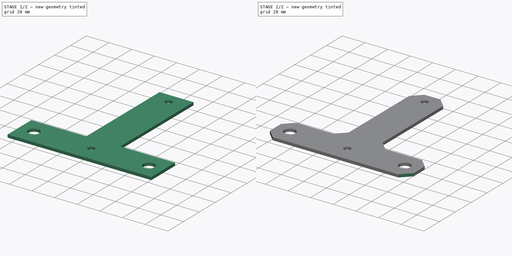
[diagram: build sequence overview — one tinted view per stage of 2, left to right]
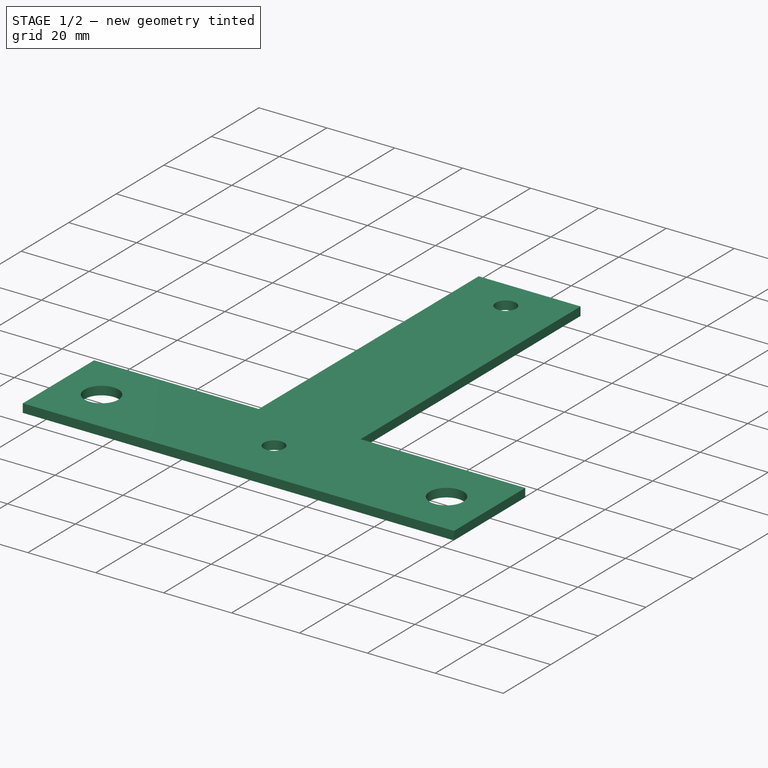
[diagram: stage 1 of 2 — iso view after this stage's code; geometry added in this stage tinted green]
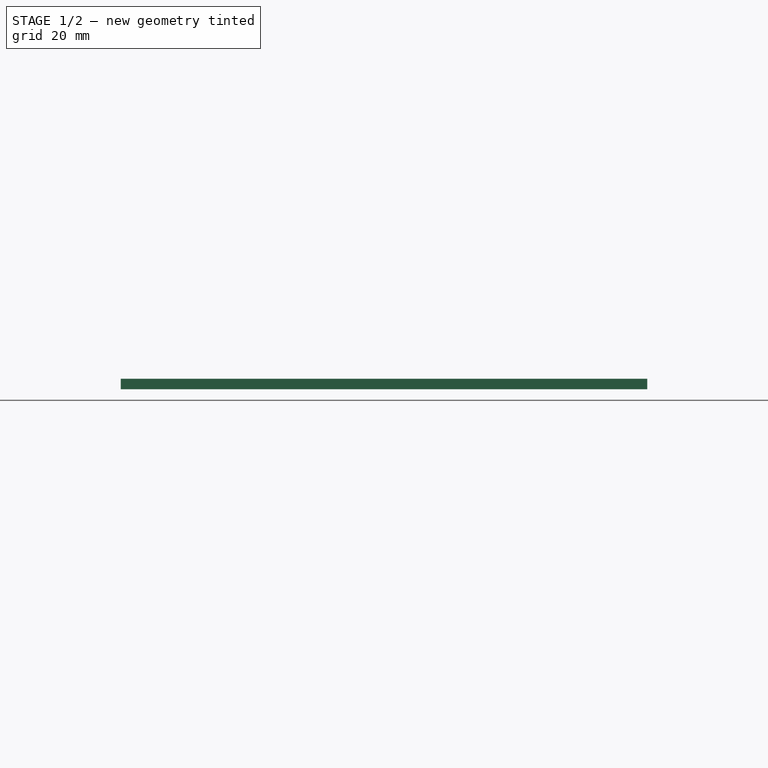
[diagram: stage 1 of 2 — front view after this stage's code; geometry added in this stage tinted green]
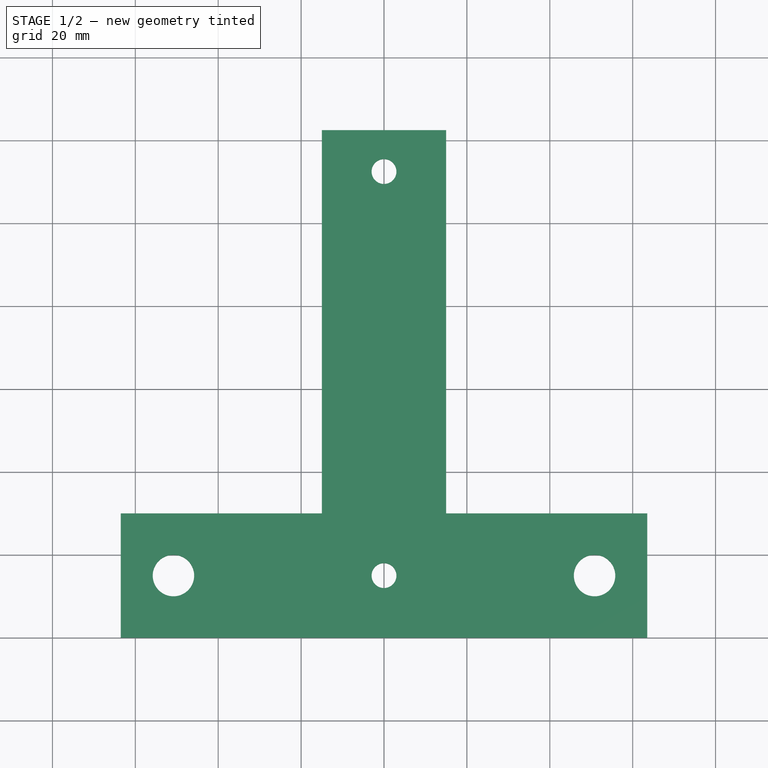
[diagram: stage 1 of 2 — top view after this stage's code; geometry added in this stage tinted green]
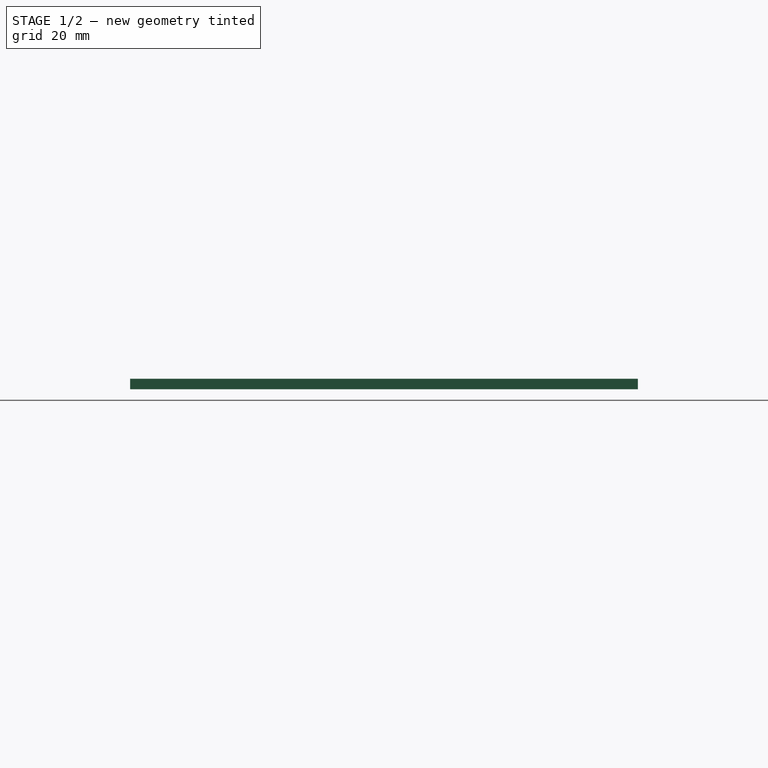
[diagram: stage 1 of 2 — right view after this stage's code; geometry added in this stage tinted green]
FCSTD DOCUMENT  (FreeCAD 1.0R39109 (Git))
Label: controller-bracket-sheetmetal
License: All rights reserved
LicenseURL: https://en.wikipedia.org/wiki/All_rights_reserved
objects: Sketcher::SketchObject×2, PartDesign::Pad×1, PartDesign::Chamfer×1, PartDesign::Body×1, Part::Feature×1
note: 12 computed .brp shape members not serialized (recipe doc carries the construction recipe); baked Part::Feature solids carry a one-line shape summary decoded from their .brp

FEATURE [Sketcher::SketchObject] Sketch
  ArcFitTolerance = 1e-06
  AttachmentSupport = -> [XY_Plane]
  FullyConstrained = true
  MakeInternals = false
  MapMode = 5
  expr: Constraints[10] = 30
  expr: Constraints[22] = 6
  expr: Constraints[23] = 97.5
  expr: Constraints[41] = 4 in
  expr: Constraints[9] = 5 in
  sketch-geometry (18):
    g0: LineSegment StartX=-63.5 StartY=30 StartZ=0 EndX=-63.5 EndY=0 EndZ=0
    g1: LineSegment StartX=-63.5 StartY=0 StartZ=0 EndX=63.5 EndY=0 EndZ=0
    g2: LineSegment StartX=63.5 StartY=0 StartZ=0 EndX=63.5 EndY=30 EndZ=0
    g3: LineSegment [constr] StartX=63.5 StartY=30 StartZ=0 EndX=-63.5 EndY=30 EndZ=0
    g4: LineSegment [constr] StartX=-15 StartY=0 StartZ=0 EndX=15 EndY=0 EndZ=0
    g5: LineSegment [constr] StartX=15 StartY=0 StartZ=0 EndX=15 EndY=122.5 EndZ=0
    g6: LineSegment [constr] StartX=15 StartY=122.5 StartZ=0 EndX=-15 EndY=122.5 EndZ=0
    g7: LineSegment [constr] StartX=-15 StartY=122.5 StartZ=0 EndX=-15 EndY=0 EndZ=0
    g8: Circle CenterX=0 CenterY=112.5 CenterZ=0 NormalX=0 NormalY=0 NormalZ=1 AngleXU=0 Radius=3
    g9: Circle CenterX=-3.2e-15 CenterY=15 CenterZ=0 NormalX=0 NormalY=0 NormalZ=1 AngleXU=0 Radius=3
    g10: LineSegment StartX=-15 StartY=30 StartZ=0 EndX=-15 EndY=122.5 EndZ=0
    g11: LineSegment StartX=-15 StartY=122.5 StartZ=0 EndX=15 EndY=122.5 EndZ=0
    g12: LineSegment StartX=15 StartY=122.5 StartZ=0 EndX=15 EndY=30 EndZ=0
    g13: LineSegment StartX=-63.5 StartY=30 StartZ=0 EndX=-15 EndY=30 EndZ=0
    g14: LineSegment StartX=15 StartY=30 StartZ=0 EndX=63.5 EndY=30 EndZ=0
    g15: Circle CenterX=-50.8 CenterY=15 CenterZ=0 NormalX=0 NormalY=0 NormalZ=1 AngleXU=0 Radius=5
    g16: Circle CenterX=50.8 CenterY=15 CenterZ=0 NormalX=0 NormalY=0 NormalZ=1 AngleXU=0 Radius=5
    g17: GeomPoint [constr] X=-3.2e-15 Y=15 Z=0
  constraints (45):
    c: Coincident(g0,g1)
    c: Coincident(g1,g2)
    c: Coincident(g2,g3)
    c: Coincident(g3,g0)
    c: Vertical(g0)
    c: Vertical(g2)
    c: Horizontal(g1)
    c: Horizontal(g3)
    c: Symmetric(g1,g0,g-1)
    c: DistanceX(g1,g1) = 127
    c: DistanceY(g0,g0) = 30
    c: Coincident(g4,g5)
    c: Coincident(g5,g6)
    c: Coincident(g6,g7)
    c: Coincident(g7,g4)
    c: Horizontal(g4)
    c: Horizontal(g6)
    c: Vertical(g5)
    c: Vertical(g7)
    c: Symmetric(g4,g4,g-1)
    c: Equal(g6,g0)
    c: Equal(g9,g8)
    c: Diameter(g8) = 6
    c: DistanceY(g9,g8) = 97.5
    c: PointOnObject(g10,g3)
    c: Coincident(g10,g6)
    c: Coincident(g11,g6)
    c: Coincident(g11,g5)
    c: Coincident(g12,g5)
    c: PointOnObject(g12,g3)
    c: Coincident(g13,g0)
    c: Coincident(g13,g10)
    c: Coincident(g14,g12)
    c: Coincident(g14,g2)
    c: PointOnObject(g12,g5)
    c: PointOnObject(g10,g7)
    c: Symmetric(g0,g1,g17)
    c: Symmetric(g16,g15,g17)
    c: Equal(g15,g16)
    c: Horizontal(g16,g15)
    c: Diameter(g15) = 10
    c: DistanceX(g15,g16) = 101.6
    c: PointOnObject(g8,g-2)
    c: DistanceY(g8,g5) = 10
    c: Coincident(g17,g9)
FEATURE [PartDesign::Pad] Pad
  Direction = (0,0,1)
  Length = 2.54
  Length2 = 10
  Profile = -> Sketch
  ReferenceAxis = -> Sketch [N_Axis]
  Refine = true
  Suppressed = false
  Type = 0
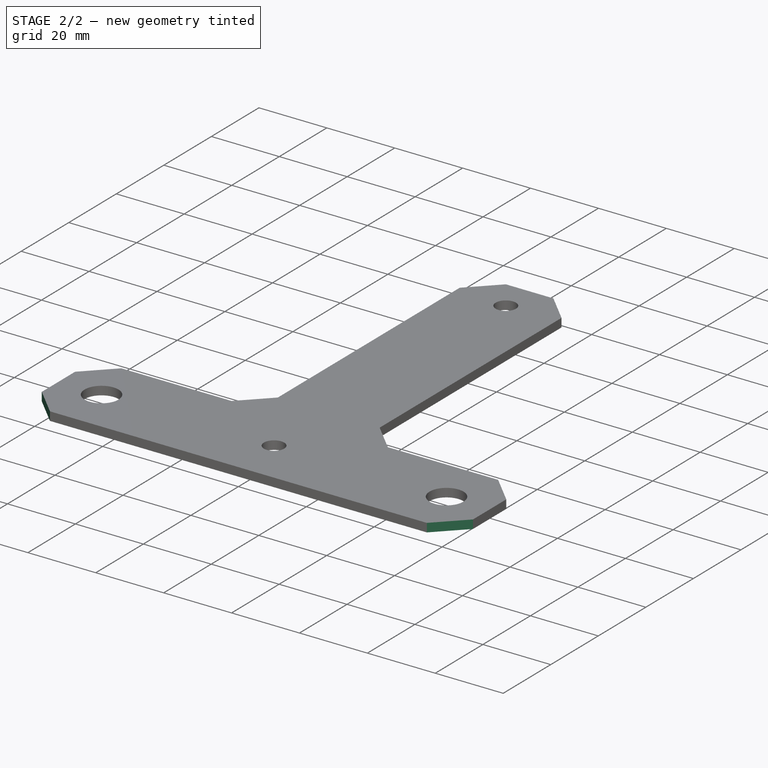
[diagram: stage 2 of 2 — iso view after this stage's code; geometry added in this stage tinted green]
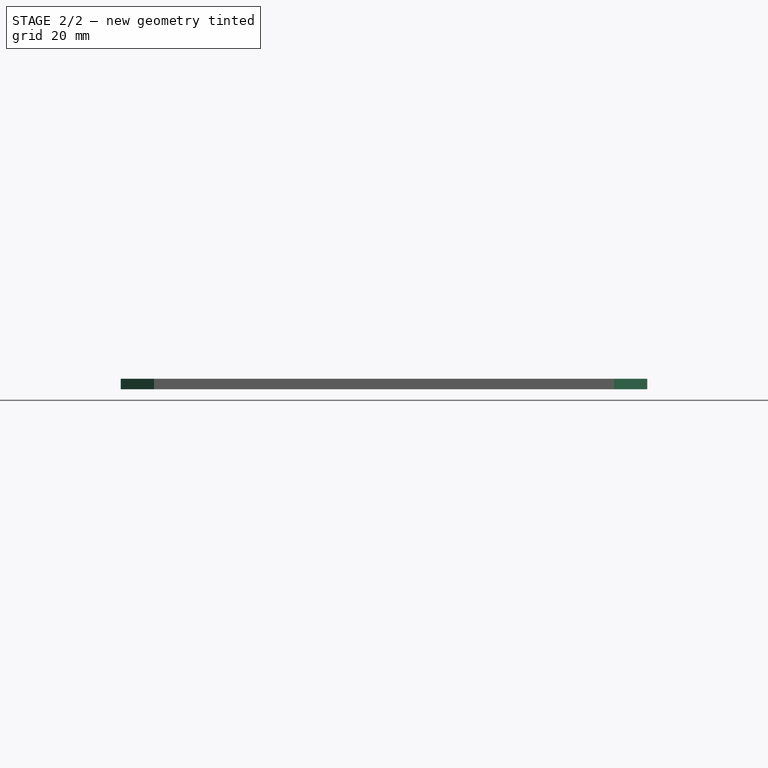
[diagram: stage 2 of 2 — front view after this stage's code; geometry added in this stage tinted green]
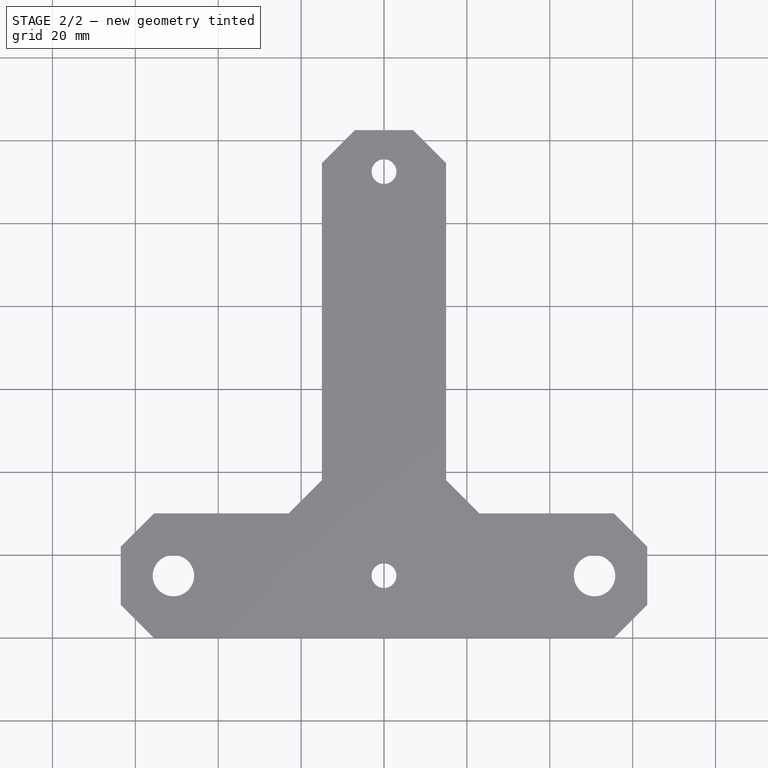
[diagram: stage 2 of 2 — top view after this stage's code; geometry added in this stage tinted green]
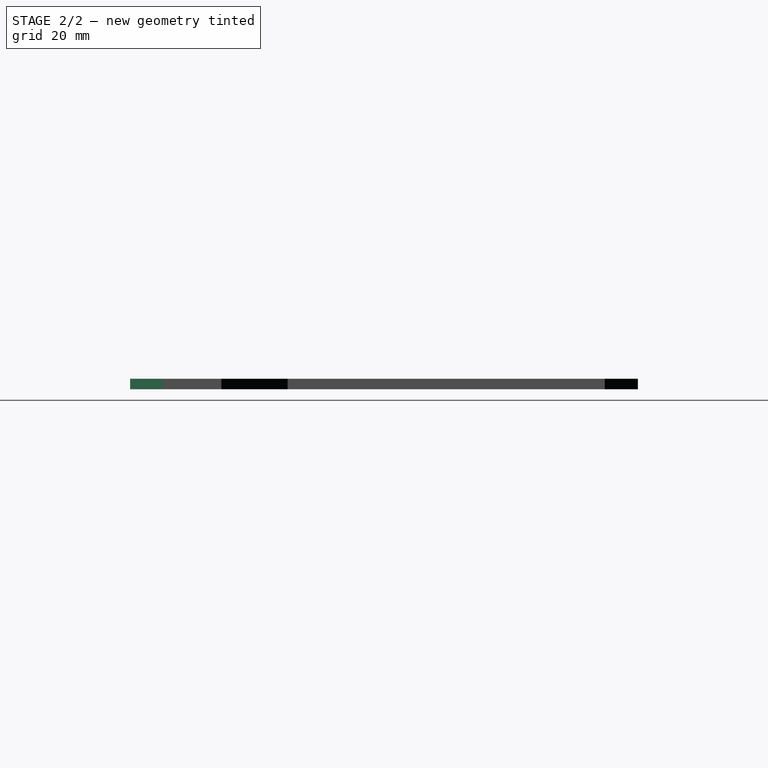
[diagram: stage 2 of 2 — right view after this stage's code; geometry added in this stage tinted green]
FEATURE [PartDesign::Chamfer] Chamfer
  Angle = 45
  Base = -> Pad [Edge1,Edge5,Edge2,Edge14,Edge11,Edge8,Edge17,Edge20]
  BaseFeature = -> Pad
  ChamferType = 0
  FlipDirection = false
  Refine = true
  Size = 8
  Size2 = 1
  SupportTransform = false
  Suppressed = false
  UseAllEdges = false
FEATURE [PartDesign::Body] Body
  AllowCompound = false
  Group = -> [Sketch,Pad,Chamfer]
  Origin = -> Origin
  Tip = -> Pad
FEATURE [Part::Feature] Unfold
  shape: bbox 127 x 122.5 x 2.54 mm, 22 faces (baked)
FEATURE [Sketcher::SketchObject] Unfold_Sketch
  ArcFitTolerance = 1e-06
  FullyConstrained = false
  MakeInternals = false
  sketch-geometry (20):
    g0: LineSegment StartX=-55.5 StartY=30 StartZ=0 EndX=-23 EndY=30 EndZ=0
    g1: LineSegment StartX=-55.5 StartY=30 StartZ=0 EndX=-63.5 EndY=22 EndZ=0
    g2: LineSegment StartX=-23 StartY=30 StartZ=0 EndX=-15 EndY=38 EndZ=0
    g3: LineSegment StartX=-63.5 StartY=22 StartZ=0 EndX=-63.5 EndY=8 EndZ=0
    g4: LineSegment StartX=-15 StartY=38 StartZ=0 EndX=-15 EndY=114.5 EndZ=0
    g5: LineSegment StartX=-63.5 StartY=8 StartZ=0 EndX=-55.5 EndY=-3.6e-15 EndZ=0
    g6: LineSegment StartX=-7 StartY=122.5 StartZ=0 EndX=-15 EndY=114.5 EndZ=0
    g7: LineSegment StartX=-55.5 StartY=0 StartZ=0 EndX=55.5 EndY=0 EndZ=0
    g8: LineSegment StartX=-7 StartY=122.5 StartZ=0 EndX=7 EndY=122.5 EndZ=0
    g9: LineSegment StartX=55.5 StartY=-4e-15 StartZ=0 EndX=63.5 EndY=8 EndZ=0
    g10: LineSegment StartX=15 StartY=114.5 StartZ=0 EndX=7 EndY=122.5 EndZ=0
    g11: LineSegment StartX=63.5 StartY=8 StartZ=0 EndX=63.5 EndY=22 EndZ=0
    g12: LineSegment StartX=15 StartY=114.5 StartZ=0 EndX=15 EndY=38 EndZ=0
    g13: LineSegment StartX=63.5 StartY=22 StartZ=0 EndX=55.5 EndY=30 EndZ=0
    g14: LineSegment StartX=23 StartY=30 StartZ=0 EndX=15 EndY=38 EndZ=0
    g15: LineSegment StartX=23 StartY=30 StartZ=0 EndX=55.5 EndY=30 EndZ=0
    g16: Circle CenterX=50.8 CenterY=15 CenterZ=0 NormalX=0 NormalY=0 NormalZ=1 AngleXU=0 Radius=5
    g17: Circle CenterX=-50.8 CenterY=15 CenterZ=0 NormalX=0 NormalY=0 NormalZ=1 AngleXU=0 Radius=5
    g18: Circle CenterX=-3.2e-15 CenterY=15 CenterZ=0 NormalX=0 NormalY=0 NormalZ=1 AngleXU=0 Radius=3
    g19: Circle CenterX=0 CenterY=112.5 CenterZ=0 NormalX=0 NormalY=0 NormalZ=1 AngleXU=0 Radius=3
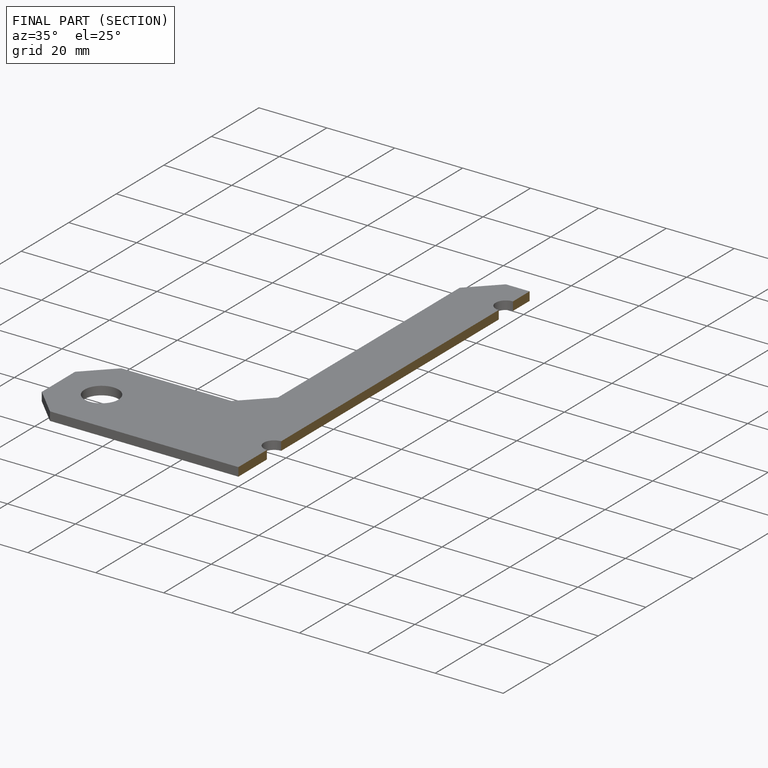
[diagram: finished part — half-section view (interior)]
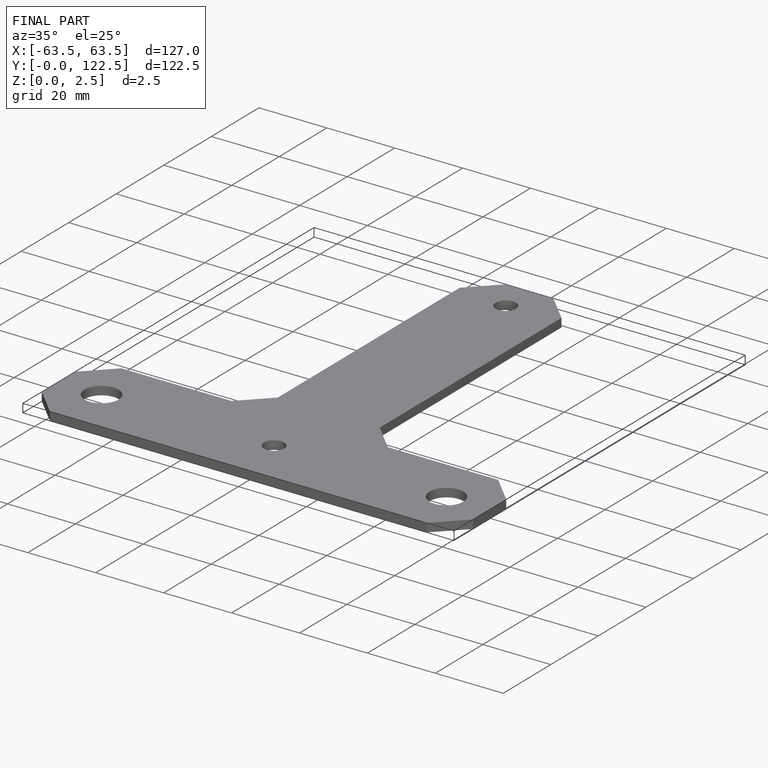
[diagram: finished part — iso view with bounding-box wireframe]
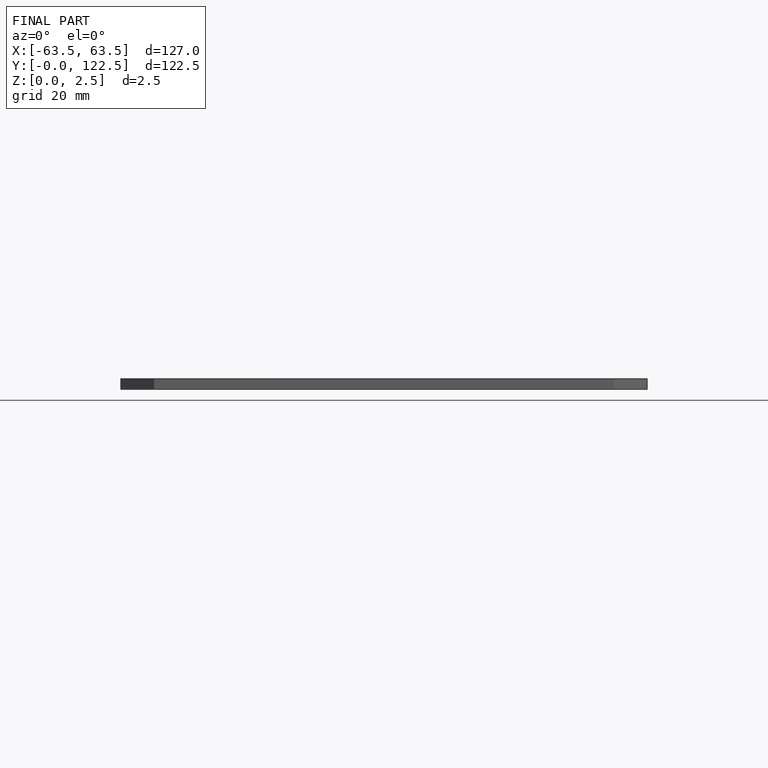
[diagram: finished part — front view with bounding-box wireframe]
